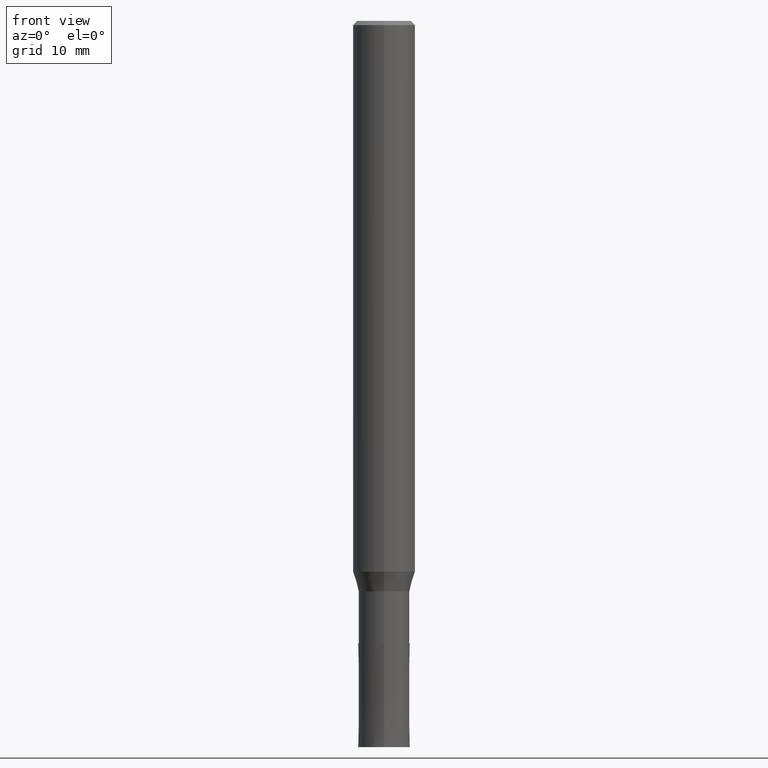
[diagram: clean part render]
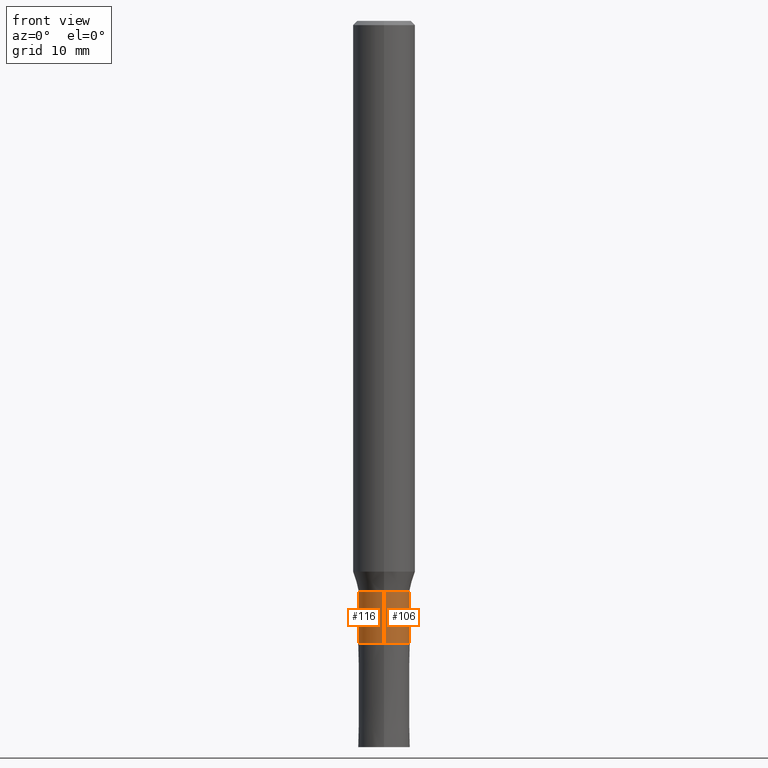
[diagram: same view with one multi-face feature highlighted, each face labeled with its STEP entity id]
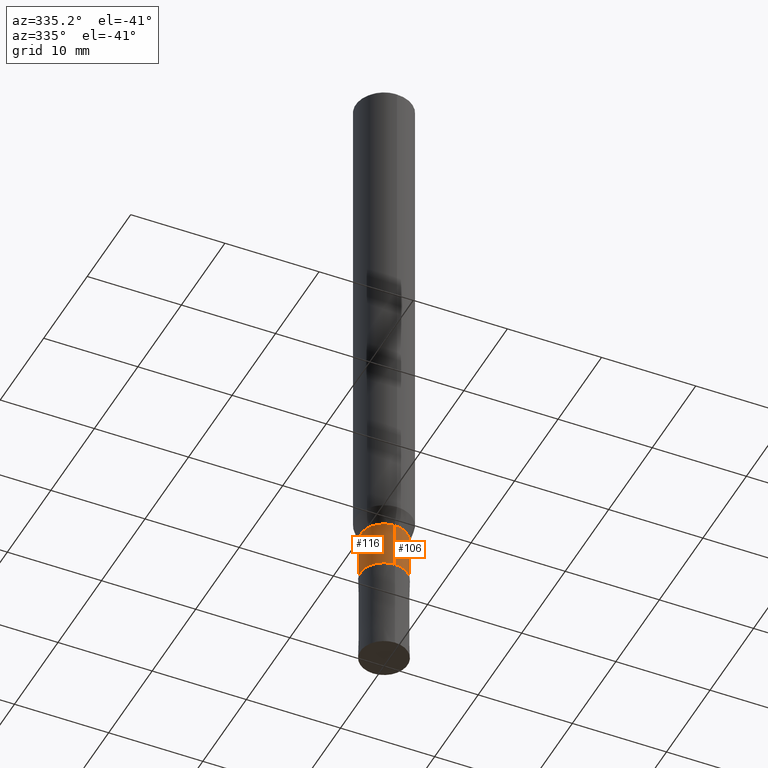
[diagram: same view with one multi-face feature highlighted, each face labeled with its STEP entity id]
A machine part, front view. The highlighted faces form ONE feature: a constant-radius fillet chain: 2 tangent blend faces with common blend radius 2.4499 mm. The faces share edges in the B-rep.
A second angle (auxiliary view) of the same feature is appended — it is thin or edge-on in the first view.
Their STEP definitions:
[1] entity #116 (Cylinder):
#98=VERTEX_POINT('',#235);
#100=EDGE_CURVE('',#98,#162,#237,.T.);
#110=VERTEX_POINT('',#249);
#116=ADVANCED_FACE('',(#256),#257,.T.);
#148=EDGE_CURVE('',#178,#98,#293,.T.);
#150=EDGE_CURVE('',#162,#110,#295,.T.);
#162=VERTEX_POINT('',#309);
#178=VERTEX_POINT('',#327);
#188=EDGE_CURVE('',#178,#110,#339,.T.);
#235=CARTESIAN_POINT('',(3.00022433654713E-016,-2.44995,-55.0));
#237=CIRCLE('',#386,2.44995);
#249=CARTESIAN_POINT('',(0.0,2.44995,-60.0));
#256=FACE_OUTER_BOUND('',#408,.T.);
#257=CYLINDRICAL_SURFACE('',#409,2.44995);
#293=LINE('',#452,#453);
#295=LINE('',#456,#457);
#309=CARTESIAN_POINT('',(0.0,2.44995,-55.0));
#327=CARTESIAN_POINT('',(3.00022433654713E-016,-2.44995,-60.0));
#339=CIRCLE('',#510,2.44995);
#386=AXIS2_PLACEMENT_3D('',#551,#552,#553);
#408=EDGE_LOOP('',(#583,#584,#585,#586));
#409=AXIS2_PLACEMENT_3D('',#587,#588,#589);
#452=CARTESIAN_POINT('',(3.00022433654713E-016,-2.44995,-57.5));
#453=VECTOR('',#627,1.0);
#456=CARTESIAN_POINT('',(-3.00022433654713E-016,2.44995,-57.5));
#457=VECTOR('',#628,1.0);
#510=AXIS2_PLACEMENT_3D('',#684,#685,#686);
#551=CARTESIAN_POINT('',(0.0,0.0,-55.0));
#552=DIRECTION('',(0.0,0.0,-1.0));
#553=DIRECTION('',(0.0,1.0,0.0));
#583=ORIENTED_EDGE('',*,*,#150,.T.);
#584=ORIENTED_EDGE('',*,*,#188,.F.);
#585=ORIENTED_EDGE('',*,*,#148,.T.);
#586=ORIENTED_EDGE('',*,*,#100,.T.);
#587=CARTESIAN_POINT('',(0.0,0.0,-57.5));
#588=DIRECTION('',(-0.0,-0.0,1.0));
#589=DIRECTION('',(0.0,1.0,0.0));
#627=DIRECTION('',(-0.0,-0.0,1.0));
#628=DIRECTION('',(0.0,0.0,-1.0));
#684=CARTESIAN_POINT('',(0.0,0.0,-60.0));
#685=DIRECTION('',(0.0,0.0,-1.0));
#686=DIRECTION('',(0.0,1.0,0.0));
[2] entity #106 (Cylinder):
#98=VERTEX_POINT('',#235);
#106=ADVANCED_FACE('',(#243),#244,.T.);
#110=VERTEX_POINT('',#249);
#148=EDGE_CURVE('',#178,#98,#293,.T.);
#150=EDGE_CURVE('',#162,#110,#295,.T.);
#156=EDGE_CURVE('',#162,#98,#301,.T.);
#162=VERTEX_POINT('',#309);
#170=EDGE_CURVE('',#110,#178,#317,.T.);
#178=VERTEX_POINT('',#327);
#235=CARTESIAN_POINT('',(3.00022433654713E-016,-2.44995,-55.0));
#243=FACE_OUTER_BOUND('',#393,.T.);
#244=CYLINDRICAL_SURFACE('',#394,2.44995);
#249=CARTESIAN_POINT('',(0.0,2.44995,-60.0));
#293=LINE('',#452,#453);
#295=LINE('',#456,#457);
#301=CIRCLE('',#464,2.44995);
#309=CARTESIAN_POINT('',(0.0,2.44995,-55.0));
#317=CIRCLE('',#484,2.44995);
#327=CARTESIAN_POINT('',(3.00022433654713E-016,-2.44995,-60.0));
#393=EDGE_LOOP('',(#558,#559,#560,#561));
#394=AXIS2_PLACEMENT_3D('',#562,#563,#564);
#452=CARTESIAN_POINT('',(3.00022433654713E-016,-2.44995,-57.5));
#453=VECTOR('',#627,1.0);
#456=CARTESIAN_POINT('',(-3.00022433654713E-016,2.44995,-57.5));
#457=VECTOR('',#628,1.0);
#464=AXIS2_PLACEMENT_3D('',#629,#630,#631);
#484=AXIS2_PLACEMENT_3D('',#644,#645,#646);
#558=ORIENTED_EDGE('',*,*,#150,.F.);
#559=ORIENTED_EDGE('',*,*,#156,.T.);
#560=ORIENTED_EDGE('',*,*,#148,.F.);
#561=ORIENTED_EDGE('',*,*,#170,.F.);
#562=CARTESIAN_POINT('',(0.0,0.0,-57.5));
#563=DIRECTION('',(-0.0,-0.0,1.0));
#564=DIRECTION('',(0.0,1.0,0.0));
#627=DIRECTION('',(-0.0,-0.0,1.0));
#628=DIRECTION('',(0.0,0.0,-1.0));
#629=CARTESIAN_POINT('',(0.0,0.0,-55.0));
#630=DIRECTION('',(0.0,0.0,-1.0));
#631=DIRECTION('',(0.0,1.0,0.0));
#644=CARTESIAN_POINT('',(0.0,0.0,-60.0));
#645=DIRECTION('',(0.0,0.0,-1.0));
#646=DIRECTION('',(0.0,1.0,0.0));